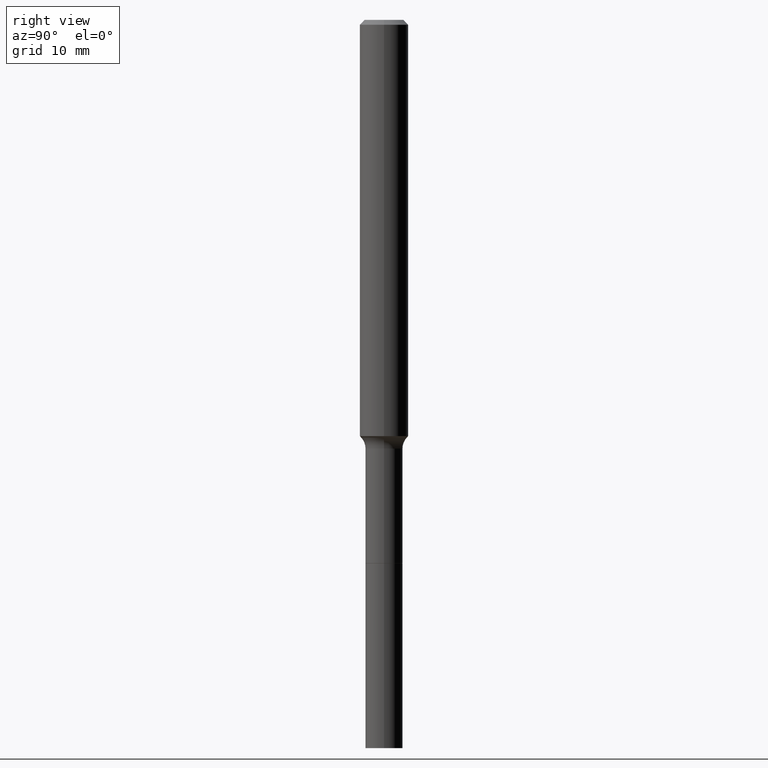
[diagram: clean part render]
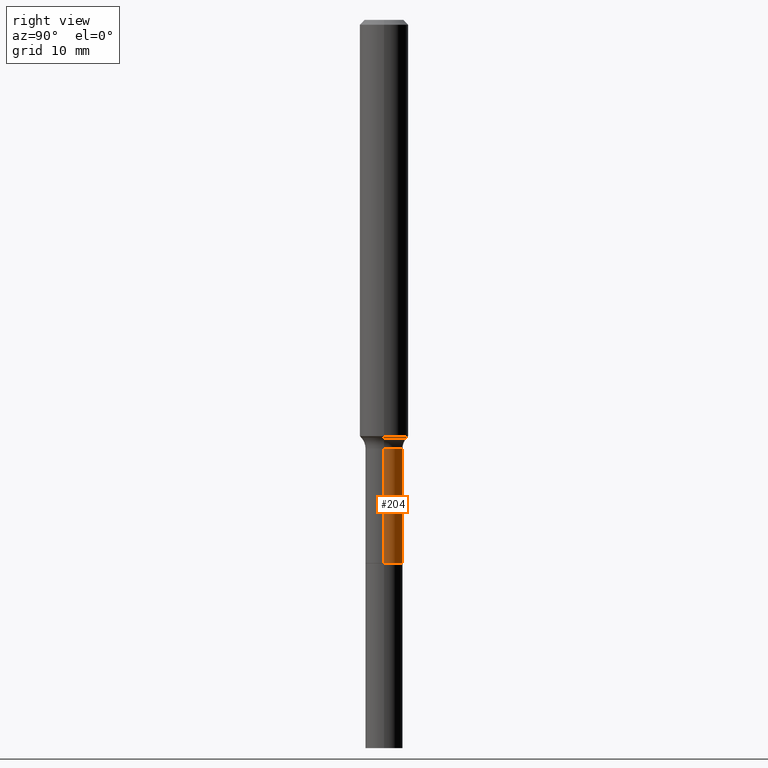
[diagram: same view with one face highlighted and labeled with its STEP entity id]
A machine part, right view. The second image highlights one B-rep face of the part: STEP entity #204.
In plain terms, the highlighted cylindrical surface (edge-blend (fillet) strip) has radius 2.3 mm, axis along (-0, 0, 1).
Its self-contained STEP definition (entity closure, byte-faithful):
#15 = EDGE_LOOP ( 'NONE', ( #250, #478, #154, #506 ) ) ;
#17 = DIRECTION ( 'NONE',  ( -2.445468806185136597E-29, 3.491481338843145583E-15, 1.000000000000000000 ) ) ;
#28 = EDGE_CURVE ( 'NONE', #224, #464, #210, .T. ) ;
#32 = VECTOR ( 'NONE', #514, 39.37007874015748143 ) ;
#45 = AXIS2_PLACEMENT_3D ( 'NONE', #201, #17, #482 ) ;
#78 = VERTEX_POINT ( 'NONE', #130 ) ;
#115 = CARTESIAN_POINT ( 'NONE',  ( 0.09054999999999997773, -6.323072704644912724E-16, 4.415378070483218706E-30 ) ) ;
#118 = AXIS2_PLACEMENT_3D ( 'NONE', #227, #356, #505 ) ;
#130 = CARTESIAN_POINT ( 'NONE',  ( 0.09055000000000000548, -9.863085634098001349E-15, -2.643799999999999706 ) ) ;
#141 = EDGE_CURVE ( 'NONE', #78, #224, #159, .T. ) ;
#151 = EDGE_CURVE ( 'NONE', #78, #502, #194, .T. ) ;
#154 = ORIENTED_EDGE ( 'NONE', *, *, #446, .F. ) ;
#159 = CIRCLE ( 'NONE', #118, 0.09055000000000000548 ) ;
#169 = VECTOR ( 'NONE', #289, 39.37007874015748143 ) ;
#176 = CARTESIAN_POINT ( 'NONE',  ( -0.09055000000000000548, -7.614131493200209369E-15, -2.643799999999999706 ) ) ;
#194 = LINE ( 'NONE', #115, #32 ) ;
#201 = CARTESIAN_POINT ( 'NONE',  ( 0.000000000000000000, 0.000000000000000000, 0.000000000000000000 ) ) ;
#204 = ADVANCED_FACE ( 'NONE', ( #323 ), #430, .T. ) ;
#210 = LINE ( 'NONE', #452, #169 ) ;
#224 = VERTEX_POINT ( 'NONE', #176 ) ;
#227 = CARTESIAN_POINT ( 'NONE',  ( 6.465330429792263485E-29, -9.230778363633508302E-15, -2.643799999999999706 ) ) ;
#232 = CARTESIAN_POINT ( 'NONE',  ( -0.09054999999999993610, -7.614131493200210946E-15, -2.086299999999999599 ) ) ;
#250 = ORIENTED_EDGE ( 'NONE', *, *, #141, .T. ) ;
#268 = CARTESIAN_POINT ( 'NONE',  ( 0.09054999999999993610, -7.916584787692945195E-15, -2.086299999999999599 ) ) ;
#289 = DIRECTION ( 'NONE',  ( -2.445468806185136877E-29, 3.491481338843145188E-15, 1.000000000000000000 ) ) ;
#314 = DIRECTION ( 'NONE',  ( -2.445468806185136597E-29, 3.491481338843145583E-15, 1.000000000000000000 ) ) ;
#323 = FACE_OUTER_BOUND ( 'NONE', #15, .T. ) ;
#356 = DIRECTION ( 'NONE',  ( -2.445468806185136597E-29, 3.491481338843145583E-15, 1.000000000000000000 ) ) ;
#359 = AXIS2_PLACEMENT_3D ( 'NONE', #508, #314, #420 ) ;
#420 = DIRECTION ( 'NONE',  ( 1.000000000000000000, -6.982962677686261189E-15, 0.000000000000000000 ) ) ;
#430 = CYLINDRICAL_SURFACE ( 'NONE', #45, 0.09054999999999997773 ) ;
#442 = CIRCLE ( 'NONE', #359, 0.09054999999999993610 ) ;
#446 = EDGE_CURVE ( 'NONE', #502, #464, #442, .T. ) ;
#452 = CARTESIAN_POINT ( 'NONE',  ( -0.09054999999999997773, 6.433964472307705601E-16, -4.454095724225815817E-30 ) ) ;
#464 = VERTEX_POINT ( 'NONE', #232 ) ;
#478 = ORIENTED_EDGE ( 'NONE', *, *, #28, .T. ) ;
#482 = DIRECTION ( 'NONE',  ( 1.000000000000000000, -6.982962677686266711E-15, 4.876176775795935793E-29 ) ) ;
#502 = VERTEX_POINT ( 'NONE', #268 ) ;
#505 = DIRECTION ( 'NONE',  ( 1.000000000000000000, -6.982962677686277755E-15, 0.000000000000000000 ) ) ;
#506 = ORIENTED_EDGE ( 'NONE', *, *, #151, .F. ) ;
#508 = CARTESIAN_POINT ( 'NONE',  ( 5.101981570344049922E-29, -7.284277517228453725E-15, -2.086299999999999599 ) ) ;
#514 = DIRECTION ( 'NONE',  ( -2.445468806185136877E-29, 3.491481338843145188E-15, 1.000000000000000000 ) ) ;